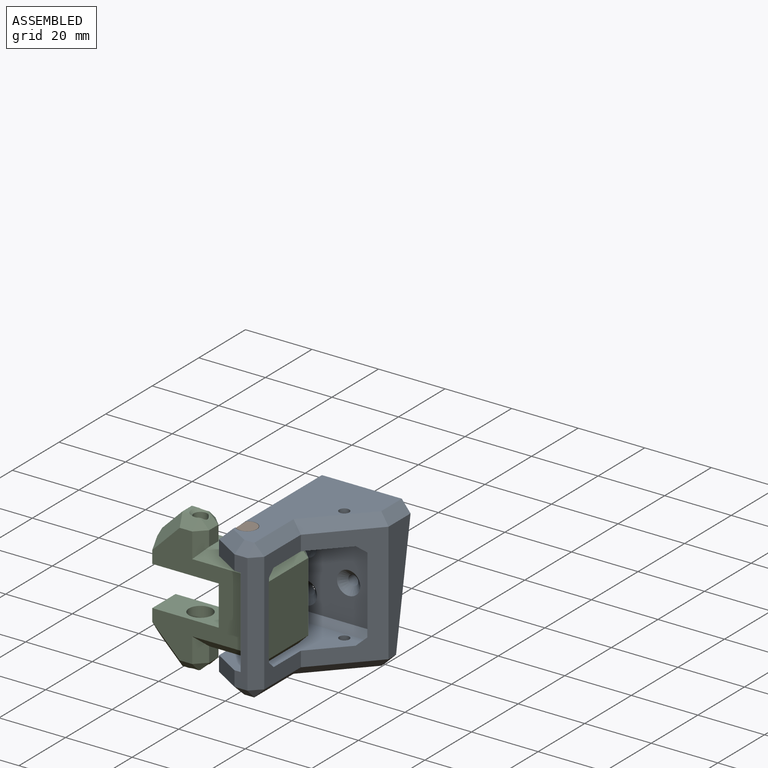
[diagram: assembled view]
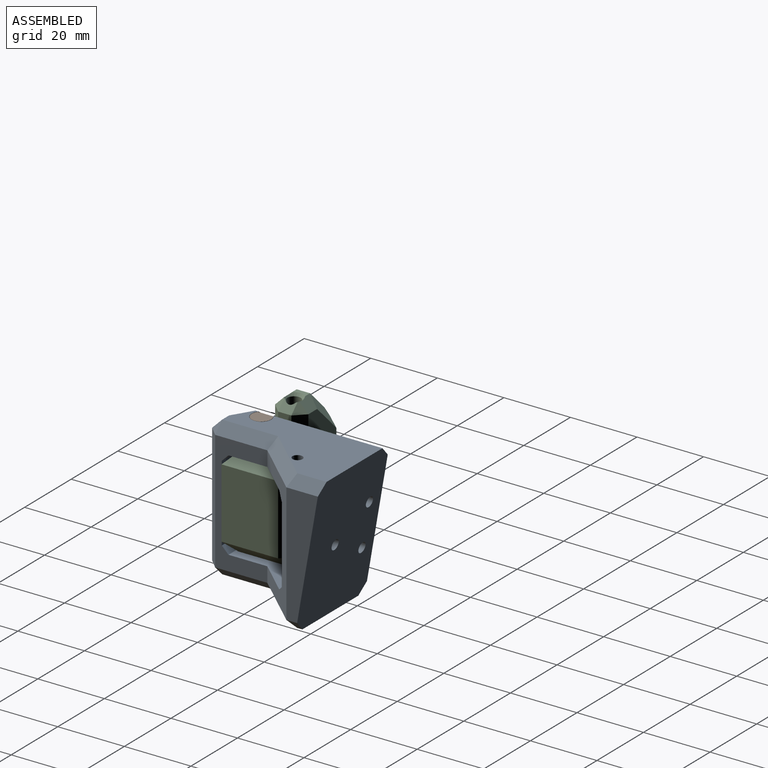
[diagram: assembled view, second angle]
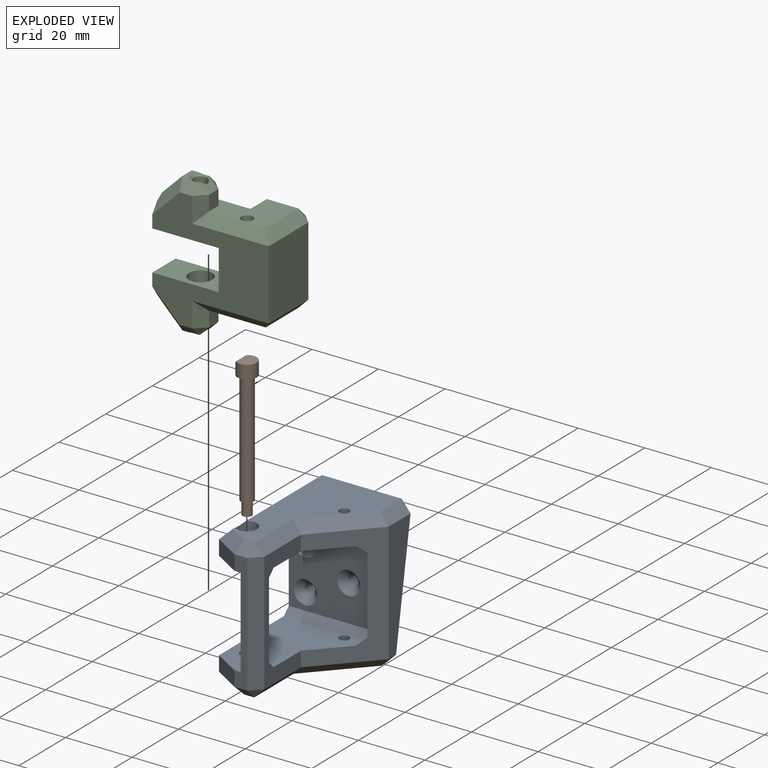
[diagram: exploded view]
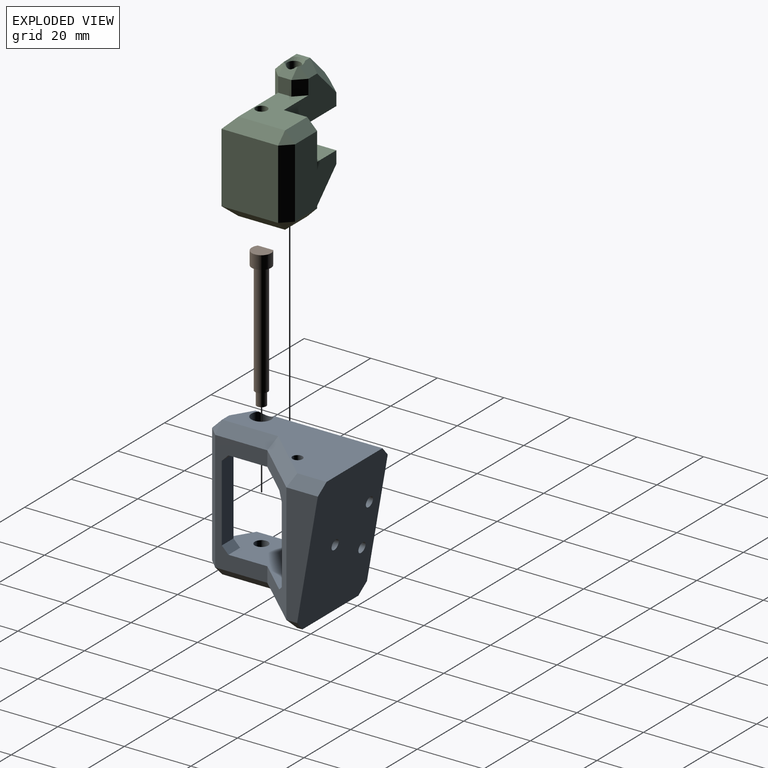
[diagram: exploded view, second angle]
ASSEMBLY  parts=3 mates=2
PART A: 51 faces, bbox 30x44.9x42 mm
  f0: cylinder r=2mm len=4mm, axis (0,0,1), area 44mm2, adj f13,f50
  f1: cylinder r=2mm len=4mm, axis (0,0,1), area 44mm2, adj f12,f47
  f2: plane 8.16x5mm, normal (-0.52,-0.85,0), area 43.1mm2, adj f8,f10,f12,f20
  f3: plane 36x16.22mm, normal (0.73,-0.68,0), area 348.6mm2, adj f7,f11,f12,f13,f15,f21,f31,f33
  f4: plane 34.61x24mm, normal (0,0,-1), area 430.9mm2, adj f5,f22,f25,f27,f29,f31,f32,f45
  f5: plane 42x30mm, normal (0,0.99,-0.17), area 1238.9mm2, adj f4,f6,f7,f8,f18,f19,f22,f29
  f6: plane 41.88x24mm, normal (0,0,1), area 587.3mm2, adj f5,f18,f19,f20,f21,f23,f24,f46
  f7: plane 36x9.45mm, normal (1,0,0), area 228.2mm2, adj f3,f5,f19,f29
  f8: plane 39.36x36mm, normal (-1,0,0), area 501.3mm2, adj f2,f5,f9,f12,f13,f14,f18,f22
  f9: plane 8.16x5mm, normal (-0.52,-0.85,0), area 43.1mm2, adj f8,f10,f13,f25
  f10: plane 36x3.84mm, normal (0,-1,0), area 88.5mm2, adj f2,f9,f12,f13,f17,f23,f27,f28
  f11: plane 36x15.68mm, normal (1,0,0), area 199.1mm2, adj f3,f12,f13,f16,f24,f28,f32,f37
  f12: plane 32.9x24.38mm, normal (0,0,-1), area 504.4mm2, adj f1,f2,f3,f8,f10,f11,f17,f35
  f13: plane 32.9x24.38mm, normal (0,0,1), area 504.4mm2, adj f0,f3,f8,f9,f10,f11,f17,f33
  f14: plane 26.38x23mm, normal (0,-1,0), area 491.4mm2, adj f8,f15,f34,f35,f42,f43,f44
  f15: plane 23x3.91mm, normal (-1,0,0), area 89.9mm2, adj f3,f14,f33,f36
  f16: plane 23x5mm, normal (0,1,0), area 115mm2, adj f11,f17,f37,f38
  f17: plane 27x7mm, normal (-1,0,0), area 139mm2, adj f10,f12,f13,f16,f37,f38
  f18: plane 39.88x3mm, normal (-0.71,0,0.71), area 160.1mm2, adj f5,f6,f8,f20,f48
  f19: plane 9.97x3mm, normal (0.71,0,0.71), area 38.7mm2, adj f5,f6,f7,f21
  f20: plane 9.01x6.68mm, normal (-0.37,-0.6,0.71), area 35.2mm2, adj f2,f6,f18,f23
  f21: plane 18x17.4mm, normal (0.52,-0.48,0.71), area 93.7mm2, adj f3,f6,f19,f24
  f22: plane 33.13x3mm, normal (-0.71,0,-0.71), area 135.9mm2, adj f4,f5,f8,f25
  f23: plane 3.84x3mm, normal (0,-0.71,0.71), area 14.5mm2, adj f6,f10,f20,f26
  f24: plane 16.86x3mm, normal (0.71,0,0.71), area 69mm2, adj f6,f11,f21,f26
  f25: plane 9.01x6.68mm, normal (-0.37,-0.6,-0.71), area 35.2mm2, adj f4,f9,f22,f27
  f26: plane 3x3mm, normal (0.58,-0.58,0.58), area 7.8mm2, adj f23,f24,f28
  f27: plane 3.84x3mm, normal (0,-0.71,-0.71), area 14.5mm2, adj f4,f10,f25,f30
  f28: plane 36x3mm, normal (0.71,-0.71,0), area 152.7mm2, adj f10,f11,f26,f30
  f29: plane 3.22x3mm, normal (0.71,0,-0.71), area 10.1mm2, adj f4,f5,f7,f31
  f30: plane 3x3mm, normal (0.58,-0.58,-0.58), area 7.8mm2, adj f27,f28,f32
  f31: plane 18x17.4mm, normal (0.52,-0.48,-0.71), area 93.7mm2, adj f3,f4,f29,f32
  f32: plane 16.86x3mm, normal (0.71,0,-0.71), area 69mm2, adj f4,f11,f30,f31
  f33: plane 6.07x2mm, normal (-0.71,0,0.71), area 11.3mm2, adj f3,f13,f15,f34
  f34: plane 26.38x2mm, normal (0,-0.71,0.71), area 71.8mm2, adj f8,f13,f14,f33
  f35: plane 26.38x2mm, normal (0,-0.71,-0.71), area 71.8mm2, adj f8,f12,f14,f36
  f36: plane 6.07x2mm, normal (-0.71,0,-0.71), area 11.3mm2, adj f3,f12,f15,f35
  f37: plane 5x2mm, normal (0,0.71,-0.71), area 14.1mm2, adj f11,f12,f16,f17
  f38: plane 5x2mm, normal (0,0.71,0.71), area 14.1mm2, adj f11,f13,f16,f17
  f39: cylinder r=1.5mm len=4.52mm, axis (0,-1,0), area 40.1mm2, adj f5,f43
  f40: cylinder r=1.5mm len=3.48mm, axis (0,-1,0), area 30.3mm2, adj f5,f42
  f41: cylinder r=1.5mm len=5.73mm, axis (0,-1,0), area 51.5mm2, adj f5,f44
  f42: cone r=1.5mm half-angle=45deg, axis (0,-1,0), area 44.4mm2, adj f14,f40
  f43: cone r=1.5mm half-angle=45deg, axis (0,-1,0), area 44.4mm2, adj f14,f39
  f44: cone r=1.5mm half-angle=45deg, axis (0,-1,0), area 44.4mm2, adj f14,f41
  f45: cylinder r=1.5mm len=7.5mm, axis (0,0,1), area 70.7mm2, adj f4,f13
  f46: cylinder r=1.5mm len=7.5mm, axis (0,0,1), area 70.7mm2, adj f6,f12
  f47: plane 6x6mm, normal (0,0,1), area 15.7mm2, adj f1,f48
  f48: cylinder r=3mm len=6mm, axis (0,0,1), area 72.1mm2, adj f6,f18,f47
  f49: cylinder r=1.5mm len=4mm, axis (0,0,-1), area 37.7mm2, adj f4,f50
  f50: plane 4x4mm, normal (0,0,1), area 5.5mm2, adj f0,f49
PART B: 8 faces, bbox 5.8x5.8x42 mm
  f0: cylinder r=2.9mm len=5.8mm, axis (0,0,-1), area 69mm2, adj f1,f6,f7
  f1: plane 5.8x4.67mm, normal (0,0,1), area 22.8mm2, adj f0,f7
  f2: plane 2.8x2.8mm, normal (0,0,-1), area 6.2mm2, adj f3
  f3: cylinder r=1.4mm len=4mm, axis (0,0,-1), area 35.2mm2, adj f2,f4
  f4: plane 3.8x3.8mm, normal (0,0,-1), area 5.2mm2, adj f3,f5
  f5: cylinder r=1.9mm len=34mm, axis (0,0,-1), area 405.9mm2, adj f4,f6
  f6: plane 5.8x5.8mm, normal (0,0,-1), area 15.1mm2, adj f0,f5
  f7: plane 4.59x1.13mm, normal (-0.7,0,0.71), area 5.1mm2, adj f0,f1
PART C: 58 faces, bbox 20x35x42 mm
  f0: plane 4x2.09mm, normal (0,0,1), area 6mm2, adj f19,f23,f27,f54
  f1: cylinder r=2mm len=9.23mm, axis (0,0,-1), area 114.8mm2, adj f52,f54,f56
  f2: cylinder r=2mm len=9.23mm, axis (0,0,-1), area 115.9mm2, adj f50,f55,f57
  f3: plane 20x14mm, normal (0,0,-1), area 180.4mm2, adj f6,f11,f12,f17,f36,f38,f39,f43
  f4: plane 20x14mm, normal (0,0,1), area 180.4mm2, adj f6,f11,f12,f16,f24,f31,f32,f33
  f5: plane 10x6.76mm, normal (0,-1,0), area 61.2mm2, adj f6,f7,f14,f46,f48,f49
  f6: plane 36x22.5mm, normal (-1,0,0), area 407.6mm2, adj f3,f4,f5,f8,f12,f13,f14,f15
  f7: plane 36x35mm, normal (1,0,0), area 607.1mm2, adj f5,f8,f9,f13,f14,f15,f25,f27
  f8: plane 10x6.76mm, normal (0,-1,0), area 61.2mm2, adj f6,f7,f13,f21,f22,f25
  f9: plane 21x17mm, normal (0,1,0), area 357mm2, adj f7,f32,f35,f38
  f10: plane 21x9.5mm, normal (-1,0,0), area 199.5mm2, adj f12,f33,f35,f36
  f11: cylinder r=1.75mm len=27mm, axis (0,0,-1), area 296.9mm2, adj f3,f4
  f12: plane 27x10mm, normal (0,-1,0), area 261mm2, adj f3,f4,f6,f10,f33,f36
  f13: plane 20x10mm, normal (0,0,-1), area 161.5mm2, adj f6,f7,f8,f15,f53
  f14: plane 20x10mm, normal (0,0,1), area 161.5mm2, adj f5,f6,f7,f15,f51
  f15: plane 12x10mm, normal (0,-1,0), area 120mm2, adj f6,f7,f13,f14
  f16: plane 4.5x4mm, normal (0,1,0), area 18mm2, adj f4,f24,f28,f30
  f17: plane 4.5x4mm, normal (0,1,0), area 18mm2, adj f3,f40,f42,f43
  f18: plane 4x2.09mm, normal (0,0,-1), area 6mm2, adj f20,f44,f47,f55
  f19: plane 6.12x6.12mm, normal (0,-0.71,0.71), area 34.6mm2, adj f0,f21,f22,f25
  f20: plane 6.12x6.12mm, normal (0,-0.71,-0.71), area 34.6mm2, adj f18,f46,f48,f49
  f21: plane 11.24x8.24mm, normal (-0.71,-0.5,0.5), area 45mm2, adj f6,f8,f19,f22,f23
  f22: plane 5.76x2.12mm, normal (0,-0.92,0.38), area 11.2mm2, adj f8,f19,f21,f25
  f23: plane 5x3mm, normal (-0.71,0,0.71), area 17.4mm2, adj f0,f6,f21,f26,f54
  f24: plane 4.5x3mm, normal (-0.71,0.71,0), area 19.1mm2, adj f4,f6,f16,f26
  f25: plane 11.24x8.24mm, normal (0.71,-0.5,0.5), area 45mm2, adj f7,f8,f19,f22,f27
  f26: plane 3.02x3.02mm, normal (-0.58,0.58,0.58), area 7.7mm2, adj f23,f24,f28,f54
  f27: plane 5x3mm, normal (0.71,0,0.71), area 17.4mm2, adj f0,f7,f25,f29,f54
  f28: plane 4.01x2.65mm, normal (0,0.71,0.71), area 11.3mm2, adj f16,f26,f29,f54,f56
  f29: plane 3.02x3.02mm, normal (0.58,0.58,0.58), area 7.7mm2, adj f27,f28,f30,f54
  f30: plane 7.5x3mm, normal (0.71,0.71,0), area 25.5mm2, adj f7,f16,f29,f31
  f31: plane 23x3mm, normal (0.71,0,0.71), area 84.9mm2, adj f4,f7,f30,f32
  f32: plane 17x3mm, normal (0,0.71,0.71), area 65.8mm2, adj f4,f9,f31,f34
  f33: plane 9.5x3mm, normal (-0.71,0,0.71), area 40.3mm2, adj f4,f10,f12,f34
  f34: plane 3x3mm, normal (-0.58,0.58,0.58), area 7.8mm2, adj f32,f33,f35
  f35: plane 21x3mm, normal (-0.71,0.71,0), area 89.1mm2, adj f9,f10,f34,f37
  f36: plane 9.5x3mm, normal (-0.71,0,-0.71), area 40.3mm2, adj f3,f10,f12,f37
  f37: plane 3x3mm, normal (-0.58,0.58,-0.58), area 7.8mm2, adj f35,f36,f38
  f38: plane 17x3mm, normal (0,0.71,-0.71), area 65.8mm2, adj f3,f9,f37,f39
  f39: plane 23x3mm, normal (0.71,0,-0.71), area 84.9mm2, adj f3,f7,f38,f40
  f40: plane 7.5x3mm, normal (0.71,0.71,0), area 25.5mm2, adj f7,f17,f39,f41
  f41: plane 3.02x3.02mm, normal (0.58,0.58,-0.58), area 7.7mm2, adj f40,f42,f44,f55
  f42: plane 4.01x2.65mm, normal (0,0.71,-0.71), area 11.3mm2, adj f17,f41,f45,f55,f57
  f43: plane 4.5x3mm, normal (-0.71,0.71,0), area 19.1mm2, adj f3,f6,f17,f45
  f44: plane 5x3mm, normal (0.71,0,-0.71), area 17.4mm2, adj f7,f18,f41,f46,f55
  f45: plane 3.02x3.02mm, normal (-0.58,0.58,-0.58), area 7.7mm2, adj f42,f43,f47,f55
  f46: plane 11.24x8.24mm, normal (0.71,-0.5,-0.5), area 45mm2, adj f5,f7,f20,f44,f48
  f47: plane 5x3mm, normal (-0.71,0,-0.71), area 17.4mm2, adj f6,f18,f45,f49,f55
  f48: plane 5.76x2.12mm, normal (0,-0.92,-0.38), area 11.2mm2, adj f5,f20,f46,f49
  f49: plane 11.24x8.24mm, normal (-0.71,-0.5,-0.5), area 45mm2, adj f5,f6,f20,f47,f48
  f50: plane 7x7mm, normal (0,0,1), area 25.9mm2, adj f2,f51
  f51: cylinder r=3.5mm len=7mm, axis (0,0,1), area 110mm2, adj f14,f50
  f52: plane 7x7mm, normal (0,0,-1), area 25.9mm2, adj f1,f53
  f53: cylinder r=3.5mm len=7mm, axis (0,0,-1), area 110mm2, adj f13,f52
  f54: cone r=1.84mm half-angle=44.6deg, axis (0,0,1), area 8.7mm2, adj f0,f1,f23,f26,f27,f28,f29,f56
  f55: cone r=1.84mm half-angle=44.6deg, axis (0,0,-1), area 8.7mm2, adj f2,f18,f41,f42,f44,f45,f47,f57
  f56: bspline ~3.49x1.12mm, area 1.7mm2, adj f1,f28,f54
  f57: bspline ~3.49x1.12mm, area 1.7mm2, adj f2,f42,f55
PLACE A t=(-0.86,-2.57,-2.16)mm fixed
PLACE B t=(-0.86,-29.41,2.84)mm
PLACE C rot(axis=(0,0,-1),90deg) t=(-0.86,-25.63,10.34)mm
MATE revolute C.f11 <-> A.f0  axis (0,0,-1) through (-0.86,-29.41,37.34)mm
MATE revolute B.f0 <-> A.f0  axis (0,0,-1) through (-0.86,-29.41,40.84)mm
